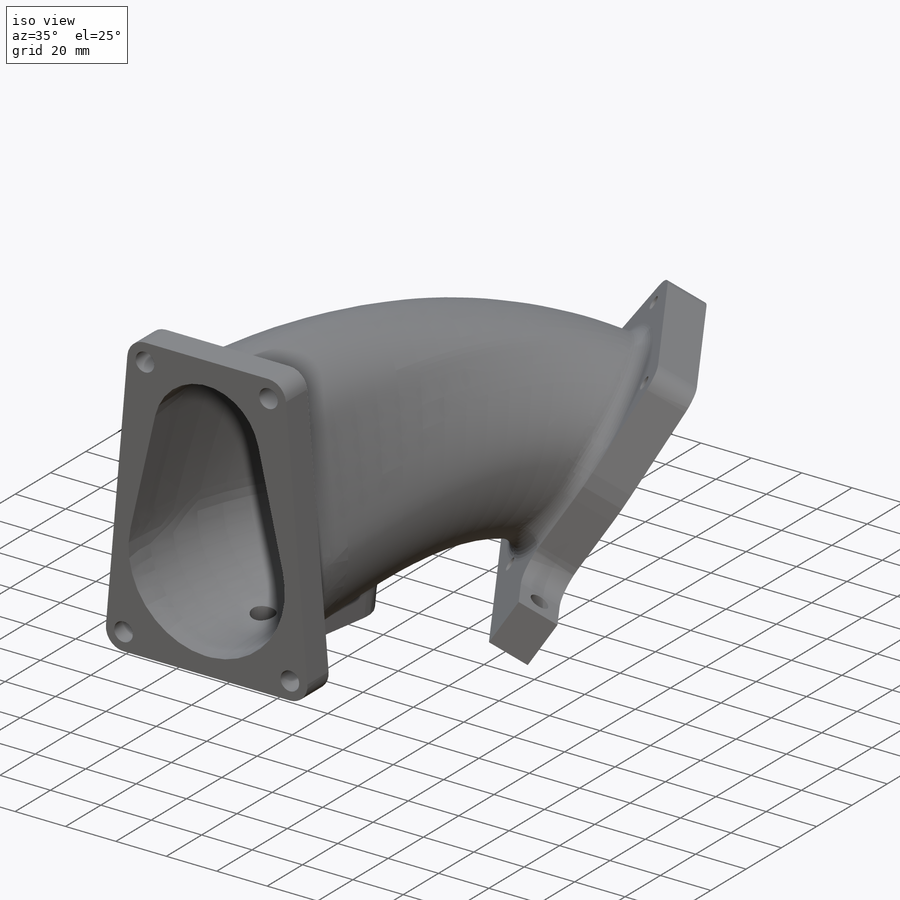
[diagram: iso view]
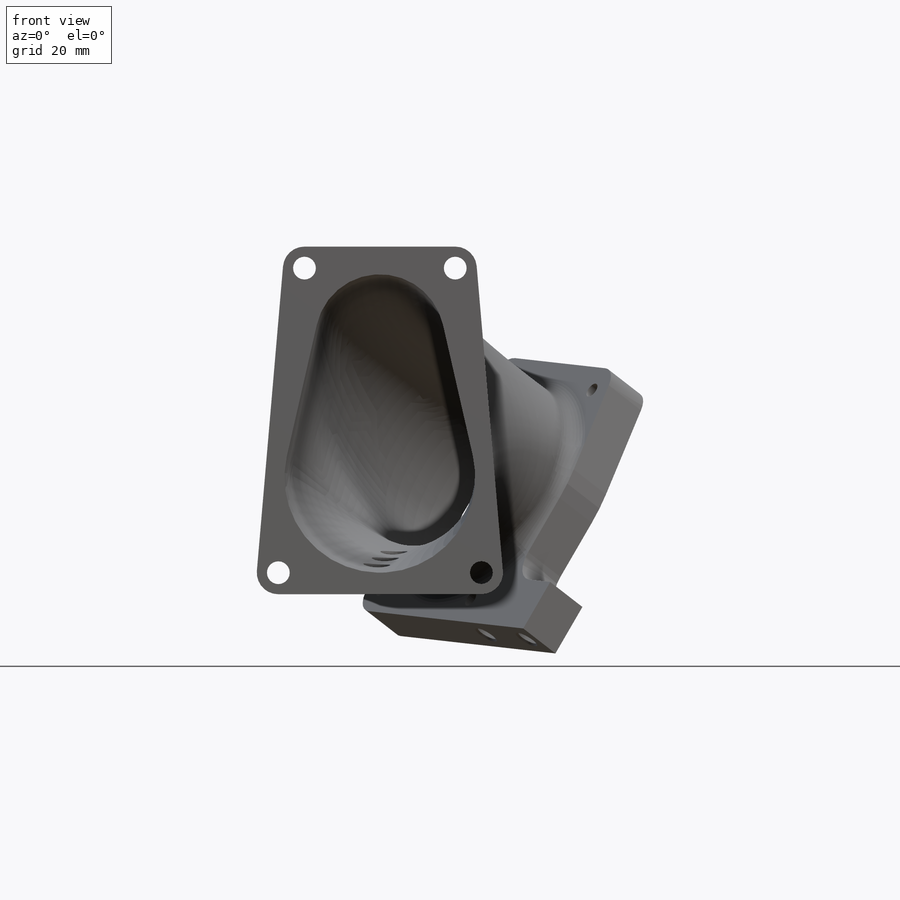
[diagram: front view]
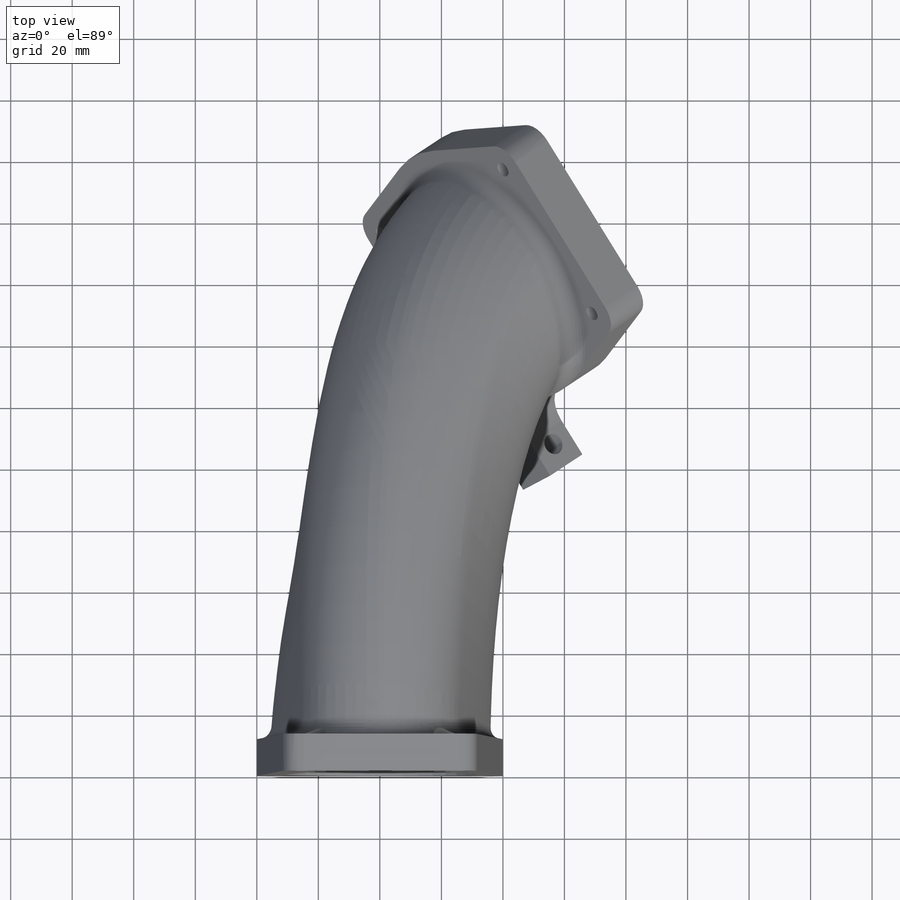
[diagram: top view]
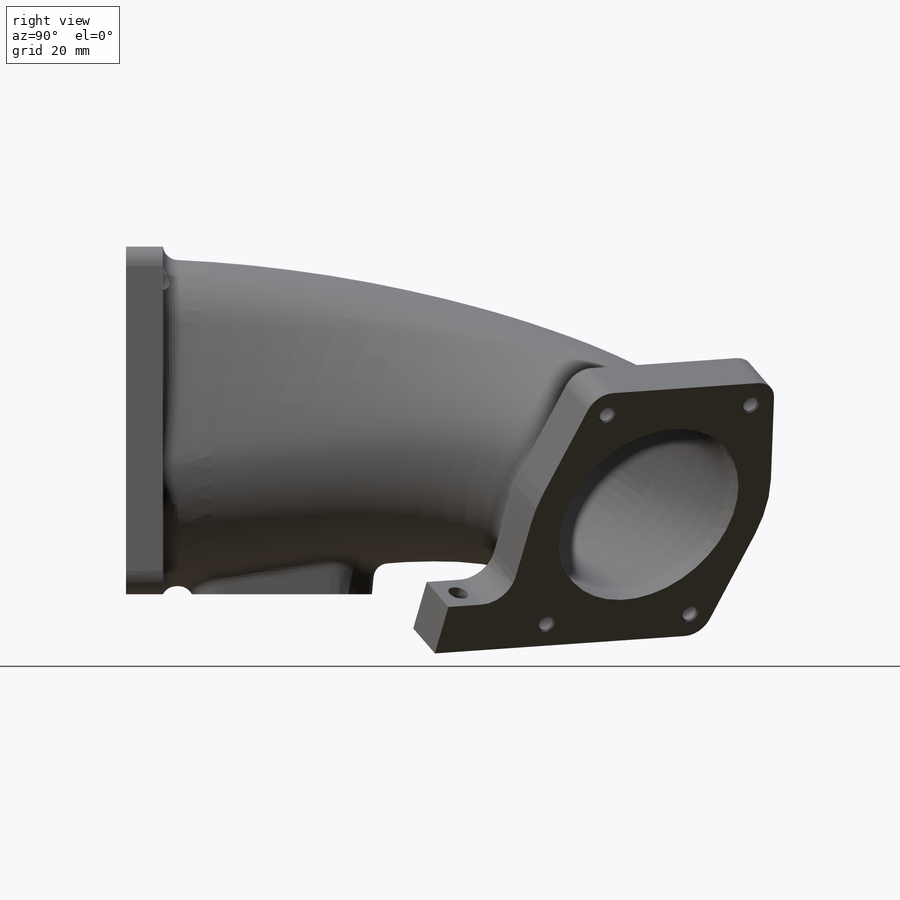
[diagram: right view]
SOLIDWORKS PART (.sldprt)
format: sldprt  version: not decoded by parser v0  size: 1,103,872 bytes
history: native  units: mm
features: sketch x18, thread x9, plane x6, extrude x5, fillet x4, hole x3, material x1, shell x1, delete_body x1, cut_extrude x1 (+11 scaffold rows collapsed; 1 parser-record rows omitted)
feature tree (61):
  scaffold x11  (default folders/planes/origin — collapsed)
  material  "Material <nicht angegeben>"
  plane  "Ebene vorne"
  plane  "Ebene oben"
  plane  "Ebene rechts"
  sketch  "M42 profil"  dims[c1.D1=62.0mm c1.D2=42.0mm c2.D2=~27.839189mm c2.D3=45.0mm]
  parser-record x1  (decoder bookkeeping rows leaked as tree rows — omitted from the tree; the rows remain in map.json)
  sketch  "Skizze2"  dims[c1.D1=140.0mm c1.D2=113.3mm c2.D2=105.0deg c2.D3=60.0mm]
  plane  "Ebene1"
  plane  "Ebene2"
  sketch  "Skizze3"  dims[D1=196.23mm D2=196.23mm]
  plane  "Ebene3"
  sketch  "M50 profil"  dims[c1.D1=66.0mm c1.D2=~53.555029mm c2.D2=60.0deg c2.D3=74.0mm c3.D3=60.0deg]
  sketch  "3D-Skizze1"  dims[c1.D1=~20.924149mm c2.D1=~28.889171mm c3.D1=~21.345024mm c4.D1=~22.217043mm c5.D1=~17.57759mm c6.D1=~17.29173mm c7.D1=~19.296963mm c8.D1=~17.81798mm c9.D1=~14.265456mm c10.D1=~14.447414mm c11.D1=~10.279156mm c12.D1=~15.155545mm c13.D1=~11.345136mm c14.D1=~33.232483mm c15.D1=~14.742324mm c16.D1=20.0mm c16.D2=103.0mm c17.D2=~20.230322mm]
  shell  "Wandung Aussen"  Thickness=5mm
  sketch  "Skizze4"  dims[c1.D5=21.0mm c1.D6=~69.814216mm c1.D8=~35.230769mm c2.D6=7.4mm c2.D7=14.0mm c2.D8=7.4mm c2.D2=66.0mm c2.D3=49.0mm c2.D4=99.0mm c2.D5=4.0mm c3.D6=13.0mm c3.D7=34.0mm c3.D8=29.0mm c3.D5=31.0mm c4.D8=2.0mm c4.D1=1.0mm]
  extrude  "DK Flansch 42"  Depth=12mm
  sketch  "Skizze5"  dims[c1.D1=90.0mm c1.D2=68.0mm c1.D9=17.0mm c1.D10=~37.020367mm c1.D3=98.0mm c1.D4=49.0mm c1.D5=55.0mm c1.D6=81.0mm c1.D7=27.5mm c1.D8=40.5mm c2.D10=~129.732846mm c2.D11=~18.141794mm c2.D5=55.0mm c2.D6=55.0mm c2.D12=81.0mm c2.D13=81.0mm c2.D14=~68.273875mm c2.D15=~68.273875mm c2.D16=~62.48648mm c3.D16=16.0deg c3.D4=55.0mm c3.D5=27.5mm c3.D6=55.0mm c3.D7=27.5mm c3.D8=81.0mm]
  extrude  "DK Flansch 50"  Depth=15mm
  delete_body  "Körper-Löschen1"
  fillet  "Verrundung1"  Radius=8mm
  sketch  "Skizze15"  dims[D1=40.0mm D2=15.0mm]
  extrude  "Aufsatz-Linear austragen4"  Depth=18mm
  sketch  "Skizze17"  dims[D1=~5.364217mm]
  extrude  "Aufsatz-Linear austragen5"  [1 undecoded]
  fillet  "Verrundung5"  Radius=10mm
  hole  "M6 Gewindebohrung1"  Diameter=5mm Depth=25mm
  sketch  "Skizze7"
  sketch  "Skizze6"  dims[hole-wizard template sketch: 39 standard entries collapsed; hole parameters kept: c13.Bohrerdurchmesser=5.0mm c13.Bohrungstiefe=25.0mm c13.Senkdurchmesser (Oben)=6.05mm c13.D4=~33.297463mm c13.Senkwinkel (Oben)=90.0deg c14.D5=~14.816244mm c14.Spitzenwinkel=118.0deg]
  thread  "Bohrungsgewinde1"  Diameter=20mm  [1 undecoded]
  thread  "Bohrungsgewinde2"  Diameter=20mm  [1 undecoded]
  thread  "Bohrungsgewinde3"  Diameter=20mm  [1 undecoded]
  thread  "Bohrungsgewinde4"  Diameter=20mm  [1 undecoded]
  fillet  "Verrundung2"  Radius=5mm
  sketch  "Skizze8"  dims[c1.D1=35.0mm c1.D4=12.0mm c1.D7=10.0mm c1.D8=10.0mm c1.D10=22.0mm c1.D11=~19.793727mm c2.D1=24.0mm c2.D2=90.0mm c2.D3=9.0mm c2.D4=~49.065261mm c2.D5=60.0mm c2.D6=1.0mm c2.D8=17.5mm c2.D9=17.5mm c3.D6=1.0mm c3.D1=68.0mm c3.D2=4.5mm]
  extrude  "Aufsatz-Linear austragen3"  [1 undecoded]
  fillet  "Verrundung4"  Radius=5mm
  hole  "G1/8 Gewindebohrung1"  Diameter=8.8mm Depth=22.72mm
  sketch  "Skizze12"  dims[D1=17.5mm D2=17.5mm]
  sketch  "Skizze11"  dims[hole-wizard template sketch: 46 standard entries collapsed; hole parameters kept: c15.Bohrerdurchmesser=8.8mm c15.Bohrungstiefe=22.72mm c15.D3=~14.816244mm c15.Spitzenwinkel=118.0deg]
  thread  "Bohrungsgewinde6"  Diameter=14.079145mm  [1 undecoded]
  thread  "Bohrungsgewinde7"  Diameter=12.000442mm  [1 undecoded]
  thread  "Bohrungsgewinde8"  Diameter=10.035941mm  [1 undecoded]
  sketch  "Skizze19"  dims[D1=25.0mm D2=8.0mm D3=~51.642618mm]
  hole  "M8 Gewindebohrung1"  Diameter=6.8mm Depth=19mm
  sketch  "Skizze21"
  sketch  "Skizze20"  dims[hole-wizard template sketch: 39 standard entries collapsed; hole parameters kept: c13.Bohrerdurchmesser=6.8mm c13.Bohrungstiefe=19.0mm c13.Senkdurchmesser (Oben)=8.05mm c13.D4=~33.297463mm c13.Senkwinkel (Oben)=90.0deg c14.D5=~14.816244mm c14.Spitzenwinkel=118.0deg]
  thread  "Bohrungsgewinde9"  Diameter=12mm  [1 undecoded]
  thread  "Bohrungsgewinde10"  Diameter=12mm  [1 undecoded]
  sketch  "Skizze22"  dims[D1=14.0mm D2=~15.157774mm]
  cut_extrude  "Schnitt-Linear austragen1"  Depth=10mm
decode coverage: 37 of 42 modeling features carry decoded parameters
note: ~ marks probable driven/reference dimensions
note: 11 parameter values undecoded
note: suppression state not decoded; provenance and decode notes live in map.json
